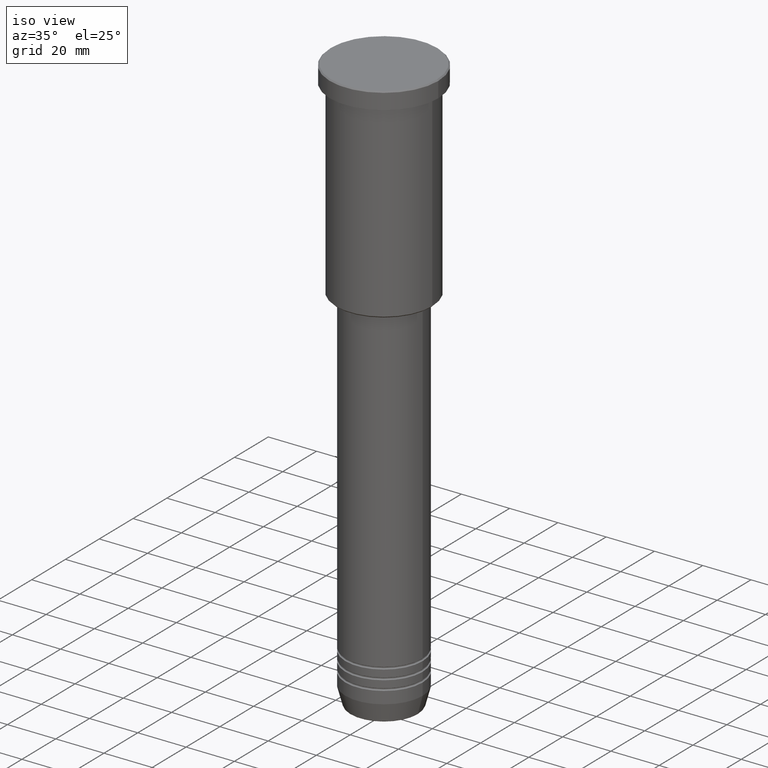
[diagram: clean part render]
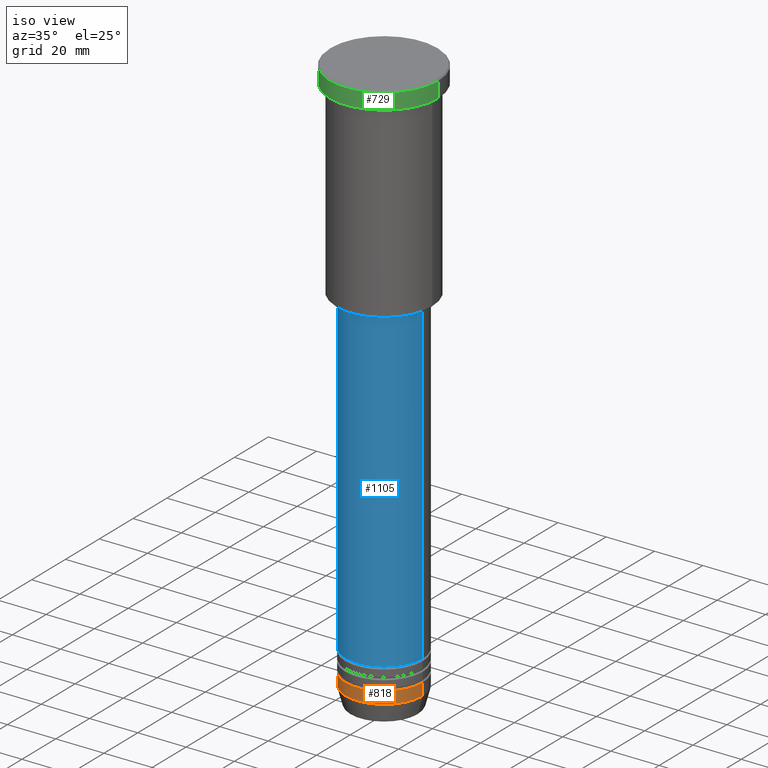
[diagram: same view with three faces highlighted in distinct colors, each labeled with its STEP entity id]
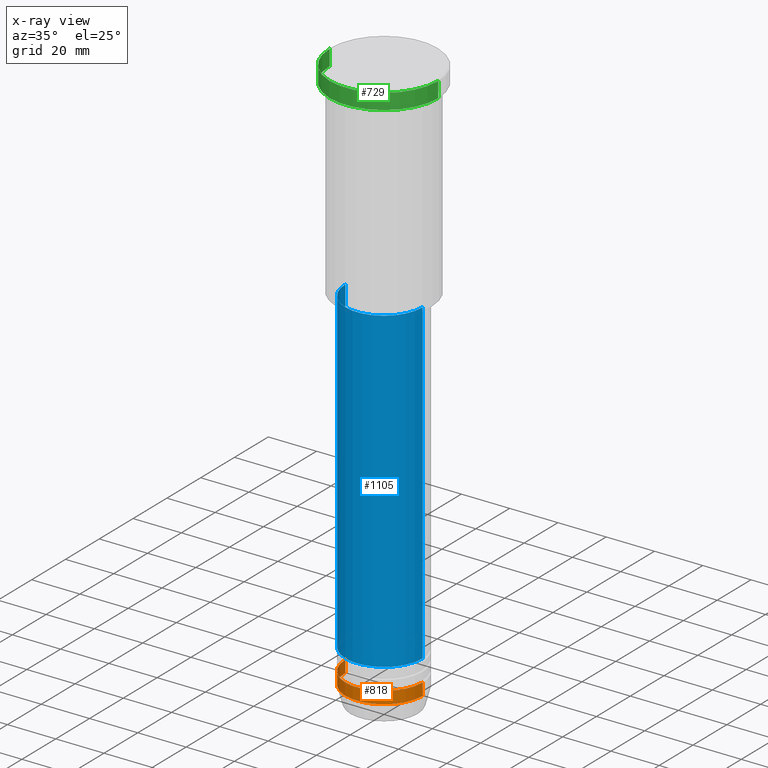
[diagram: x-ray of the same camera — body ghosted, the three highlighted faces saturated]
A machine part, iso view with three faces highlighted in distinct colors.
The next image is the same camera in x-ray (body ghosted, the three faces saturated) — at least one of them is partly hidden behind the body in this view.
Their STEP definitions:

[orange] entity #818 — the highlighted cylindrical surface (partial cylindrical patch) has radius 16 mm, axis along (-0, -0, 1).
#3 = EDGE_CURVE ( 'NONE', #574, #324, #453, .T. ) ;
#53 = EDGE_LOOP ( 'NONE', ( #127, #402, #342, #691 ) ) ;
#73 = AXIS2_PLACEMENT_3D ( 'NONE', #167, #709, #614 ) ;
#127 = ORIENTED_EDGE ( 'NONE', *, *, #3, .F. ) ;
#167 = CARTESIAN_POINT ( 'NONE',  ( 0.000000000000000000, 0.000000000000000000, -232.5000000000000000 ) ) ;
#210 = VERTEX_POINT ( 'NONE', #761 ) ;
#324 = VERTEX_POINT ( 'NONE', #458 ) ;
#342 = ORIENTED_EDGE ( 'NONE', *, *, #1053, .T. ) ;
#402 = ORIENTED_EDGE ( 'NONE', *, *, #934, .T. ) ;
#431 = DIRECTION ( 'NONE',  ( -0.000000000000000000, -0.000000000000000000, 1.000000000000000000 ) ) ;
#453 = LINE ( 'NONE', #467, #1124 ) ;
#458 = CARTESIAN_POINT ( 'NONE',  ( -16.00000000000000000, 1.959434878635765131E-15, -227.5000000000000000 ) ) ;
#467 = CARTESIAN_POINT ( 'NONE',  ( -16.00000000000000000, 1.959434878635765131E-15, 0.000000000000000000 ) ) ;
#497 = VECTOR ( 'NONE', #910, 1000.000000000000000 ) ;
#517 = CARTESIAN_POINT ( 'NONE',  ( 0.000000000000000000, 0.000000000000000000, -227.5000000000000000 ) ) ;
#555 = CIRCLE ( 'NONE', #1082, 16.00000000000000000 ) ;
#574 = VERTEX_POINT ( 'NONE', #582 ) ;
#582 = CARTESIAN_POINT ( 'NONE',  ( -16.00000000000000000, 1.959434878635765131E-15, -232.5000000000000000 ) ) ;
#593 = EDGE_CURVE ( 'NONE', #324, #210, #555, .T. ) ;
#614 = DIRECTION ( 'NONE',  ( 1.000000000000000000, 0.000000000000000000, 0.000000000000000000 ) ) ;
#616 = DIRECTION ( 'NONE',  ( -0.000000000000000000, -0.000000000000000000, 1.000000000000000000 ) ) ;
#626 = DIRECTION ( 'NONE',  ( 1.000000000000000000, 0.000000000000000000, 0.000000000000000000 ) ) ;
#680 = CIRCLE ( 'NONE', #73, 16.00000000000000000 ) ;
#691 = ORIENTED_EDGE ( 'NONE', *, *, #593, .F. ) ;
#706 = DIRECTION ( 'NONE',  ( 1.000000000000000000, 0.000000000000000000, 0.000000000000000000 ) ) ;
#709 = DIRECTION ( 'NONE',  ( -0.000000000000000000, -0.000000000000000000, 1.000000000000000000 ) ) ;
#710 = FACE_OUTER_BOUND ( 'NONE', #53, .T. ) ;
#761 = CARTESIAN_POINT ( 'NONE',  ( 16.00000000000000000, 0.000000000000000000, -227.5000000000000000 ) ) ;
#813 = DIRECTION ( 'NONE',  ( -0.000000000000000000, -0.000000000000000000, 1.000000000000000000 ) ) ;
#818 = ADVANCED_FACE ( 'NONE', ( #710 ), #1078, .T. ) ;
#822 = LINE ( 'NONE', #1113, #497 ) ;
#861 = AXIS2_PLACEMENT_3D ( 'NONE', #883, #616, #626 ) ;
#883 = CARTESIAN_POINT ( 'NONE',  ( 0.000000000000000000, 0.000000000000000000, 0.000000000000000000 ) ) ;
#910 = DIRECTION ( 'NONE',  ( -0.000000000000000000, -0.000000000000000000, 1.000000000000000000 ) ) ;
#934 = EDGE_CURVE ( 'NONE', #574, #970, #680, .T. ) ;
#970 = VERTEX_POINT ( 'NONE', #1037 ) ;
#1037 = CARTESIAN_POINT ( 'NONE',  ( 16.00000000000000000, 0.000000000000000000, -232.5000000000000000 ) ) ;
#1053 = EDGE_CURVE ( 'NONE', #970, #210, #822, .T. ) ;
#1078 = CYLINDRICAL_SURFACE ( 'NONE', #861, 16.00000000000000000 ) ;
#1082 = AXIS2_PLACEMENT_3D ( 'NONE', #517, #431, #706 ) ;
#1113 = CARTESIAN_POINT ( 'NONE',  ( 16.00000000000000000, 0.000000000000000000, 0.000000000000000000 ) ) ;
#1124 = VECTOR ( 'NONE', #813, 1000.000000000000000 ) ;

[blue] entity #1105 — the highlighted cylindrical surface (partial cylindrical patch) has radius 16 mm, axis along (-0, -0, 1).
#34 = EDGE_CURVE ( 'NONE', #849, #592, #372, .T. ) ;
#49 = CYLINDRICAL_SURFACE ( 'NONE', #787, 16.00000000000000000 ) ;
#54 = DIRECTION ( 'NONE',  ( -0.000000000000000000, -0.000000000000000000, 1.000000000000000000 ) ) ;
#106 = AXIS2_PLACEMENT_3D ( 'NONE', #692, #865, #778 ) ;
#113 = CARTESIAN_POINT ( 'NONE',  ( 16.00000000000000000, 0.000000000000000000, -87.00000000000002842 ) ) ;
#138 = CARTESIAN_POINT ( 'NONE',  ( -16.00000000000000000, 1.959434878635765131E-15, -87.00000000000002842 ) ) ;
#143 = CARTESIAN_POINT ( 'NONE',  ( 0.000000000000000000, 0.000000000000000000, 0.000000000000000000 ) ) ;
#165 = CIRCLE ( 'NONE', #1026, 16.00000000000000000 ) ;
#169 = VECTOR ( 'NONE', #885, 1000.000000000000000 ) ;
#170 = DIRECTION ( 'NONE',  ( 1.000000000000000000, 0.000000000000000000, 0.000000000000000000 ) ) ;
#226 = FACE_OUTER_BOUND ( 'NONE', #629, .T. ) ;
#243 = VECTOR ( 'NONE', #54, 1000.000000000000000 ) ;
#305 = ORIENTED_EDGE ( 'NONE', *, *, #864, .T. ) ;
#372 = LINE ( 'NONE', #620, #169 ) ;
#408 = ORIENTED_EDGE ( 'NONE', *, *, #599, .F. ) ;
#410 = CARTESIAN_POINT ( 'NONE',  ( 16.00000000000000000, 0.000000000000000000, -218.5000000000000000 ) ) ;
#506 = VERTEX_POINT ( 'NONE', #113 ) ;
#507 = VERTEX_POINT ( 'NONE', #410 ) ;
#509 = DIRECTION ( 'NONE',  ( -0.000000000000000000, -0.000000000000000000, 1.000000000000000000 ) ) ;
#528 = CARTESIAN_POINT ( 'NONE',  ( 0.000000000000000000, 0.000000000000000000, -218.5000000000000000 ) ) ;
#592 = VERTEX_POINT ( 'NONE', #138 ) ;
#599 = EDGE_CURVE ( 'NONE', #592, #506, #942, .T. ) ;
#620 = CARTESIAN_POINT ( 'NONE',  ( -16.00000000000000000, 1.959434878635765131E-15, 0.000000000000000000 ) ) ;
#629 = EDGE_LOOP ( 'NONE', ( #1135, #958, #305, #408 ) ) ;
#632 = DIRECTION ( 'NONE',  ( -0.000000000000000000, -0.000000000000000000, 1.000000000000000000 ) ) ;
#692 = CARTESIAN_POINT ( 'NONE',  ( 0.000000000000000000, 0.000000000000000000, -87.00000000000002842 ) ) ;
#766 = EDGE_CURVE ( 'NONE', #849, #507, #165, .T. ) ;
#778 = DIRECTION ( 'NONE',  ( 1.000000000000000000, 0.000000000000000000, 0.000000000000000000 ) ) ;
#787 = AXIS2_PLACEMENT_3D ( 'NONE', #143, #509, #856 ) ;
#849 = VERTEX_POINT ( 'NONE', #951 ) ;
#852 = LINE ( 'NONE', #857, #243 ) ;
#856 = DIRECTION ( 'NONE',  ( 1.000000000000000000, 0.000000000000000000, 0.000000000000000000 ) ) ;
#857 = CARTESIAN_POINT ( 'NONE',  ( 16.00000000000000000, 0.000000000000000000, 0.000000000000000000 ) ) ;
#864 = EDGE_CURVE ( 'NONE', #507, #506, #852, .T. ) ;
#865 = DIRECTION ( 'NONE',  ( -0.000000000000000000, -0.000000000000000000, 1.000000000000000000 ) ) ;
#885 = DIRECTION ( 'NONE',  ( -0.000000000000000000, -0.000000000000000000, 1.000000000000000000 ) ) ;
#942 = CIRCLE ( 'NONE', #106, 16.00000000000000000 ) ;
#951 = CARTESIAN_POINT ( 'NONE',  ( -16.00000000000000000, 1.959434878635765131E-15, -218.5000000000000000 ) ) ;
#958 = ORIENTED_EDGE ( 'NONE', *, *, #766, .T. ) ;
#1026 = AXIS2_PLACEMENT_3D ( 'NONE', #528, #632, #170 ) ;
#1105 = ADVANCED_FACE ( 'NONE', ( #226 ), #49, .T. ) ;
#1135 = ORIENTED_EDGE ( 'NONE', *, *, #34, .F. ) ;

[green] entity #729 — the highlighted cylindrical surface (partial cylindrical patch) has radius 22.5 mm, axis along (-0, -0, 1).
#29 = ORIENTED_EDGE ( 'NONE', *, *, #971, .T. ) ;
#39 = CARTESIAN_POINT ( 'NONE',  ( -22.50000000000000000, 2.755455298081544778E-15, -6.999999999999995559 ) ) ;
#62 = CARTESIAN_POINT ( 'NONE',  ( 0.000000000000000000, 0.000000000000000000, 0.000000000000000000 ) ) ;
#141 = ORIENTED_EDGE ( 'NONE', *, *, #152, .T. ) ;
#152 = EDGE_CURVE ( 'NONE', #835, #233, #339, .T. ) ;
#186 = CARTESIAN_POINT ( 'NONE',  ( 22.50000000000000000, 0.000000000000000000, -6.999999999999995559 ) ) ;
#203 = CARTESIAN_POINT ( 'NONE',  ( -22.50000000000000000, 2.755455298081544778E-15, 0.000000000000000000 ) ) ;
#215 = DIRECTION ( 'NONE',  ( 1.000000000000000000, 0.000000000000000000, 0.000000000000000000 ) ) ;
#223 = VECTOR ( 'NONE', #938, 1000.000000000000000 ) ;
#228 = FACE_OUTER_BOUND ( 'NONE', #783, .T. ) ;
#233 = VERTEX_POINT ( 'NONE', #445 ) ;
#254 = EDGE_CURVE ( 'NONE', #566, #967, #843, .T. ) ;
#294 = LINE ( 'NONE', #580, #223 ) ;
#329 = CARTESIAN_POINT ( 'NONE',  ( 0.000000000000000000, 0.000000000000000000, -6.999999999999995559 ) ) ;
#339 = CIRCLE ( 'NONE', #589, 22.50000000000000000 ) ;
#369 = DIRECTION ( 'NONE',  ( -0.000000000000000000, -0.000000000000000000, 1.000000000000000000 ) ) ;
#445 = CARTESIAN_POINT ( 'NONE',  ( -22.50000000000000000, 2.755455298081544778E-15, -0.5000000000000490719 ) ) ;
#494 = LINE ( 'NONE', #203, #1144 ) ;
#513 = DIRECTION ( 'NONE',  ( -0.000000000000000000, -0.000000000000000000, 1.000000000000000000 ) ) ;
#564 = CARTESIAN_POINT ( 'NONE',  ( 0.000000000000000000, 0.000000000000000000, -0.5000000000000490719 ) ) ;
#566 = VERTEX_POINT ( 'NONE', #39 ) ;
#580 = CARTESIAN_POINT ( 'NONE',  ( 22.50000000000000000, 0.000000000000000000, 0.000000000000000000 ) ) ;
#589 = AXIS2_PLACEMENT_3D ( 'NONE', #564, #1036, #215 ) ;
#596 = CYLINDRICAL_SURFACE ( 'NONE', #697, 22.50000000000000000 ) ;
#617 = AXIS2_PLACEMENT_3D ( 'NONE', #329, #513, #624 ) ;
#624 = DIRECTION ( 'NONE',  ( 1.000000000000000000, 0.000000000000000000, 0.000000000000000000 ) ) ;
#653 = ORIENTED_EDGE ( 'NONE', *, *, #254, .T. ) ;
#697 = AXIS2_PLACEMENT_3D ( 'NONE', #62, #1056, #1061 ) ;
#729 = ADVANCED_FACE ( 'NONE', ( #228 ), #596, .T. ) ;
#783 = EDGE_LOOP ( 'NONE', ( #1071, #653, #29, #141 ) ) ;
#835 = VERTEX_POINT ( 'NONE', #1084 ) ;
#843 = CIRCLE ( 'NONE', #617, 22.50000000000000000 ) ;
#938 = DIRECTION ( 'NONE',  ( -0.000000000000000000, -0.000000000000000000, 1.000000000000000000 ) ) ;
#967 = VERTEX_POINT ( 'NONE', #186 ) ;
#971 = EDGE_CURVE ( 'NONE', #967, #835, #294, .T. ) ;
#1022 = EDGE_CURVE ( 'NONE', #566, #233, #494, .T. ) ;
#1036 = DIRECTION ( 'NONE',  ( 0.000000000000000000, 0.000000000000000000, -1.000000000000000000 ) ) ;
#1056 = DIRECTION ( 'NONE',  ( -0.000000000000000000, -0.000000000000000000, 1.000000000000000000 ) ) ;
#1061 = DIRECTION ( 'NONE',  ( 1.000000000000000000, 0.000000000000000000, 0.000000000000000000 ) ) ;
#1071 = ORIENTED_EDGE ( 'NONE', *, *, #1022, .F. ) ;
#1084 = CARTESIAN_POINT ( 'NONE',  ( 22.50000000000000000, 0.000000000000000000, -0.5000000000000490719 ) ) ;
#1144 = VECTOR ( 'NONE', #369, 1000.000000000000000 ) ;